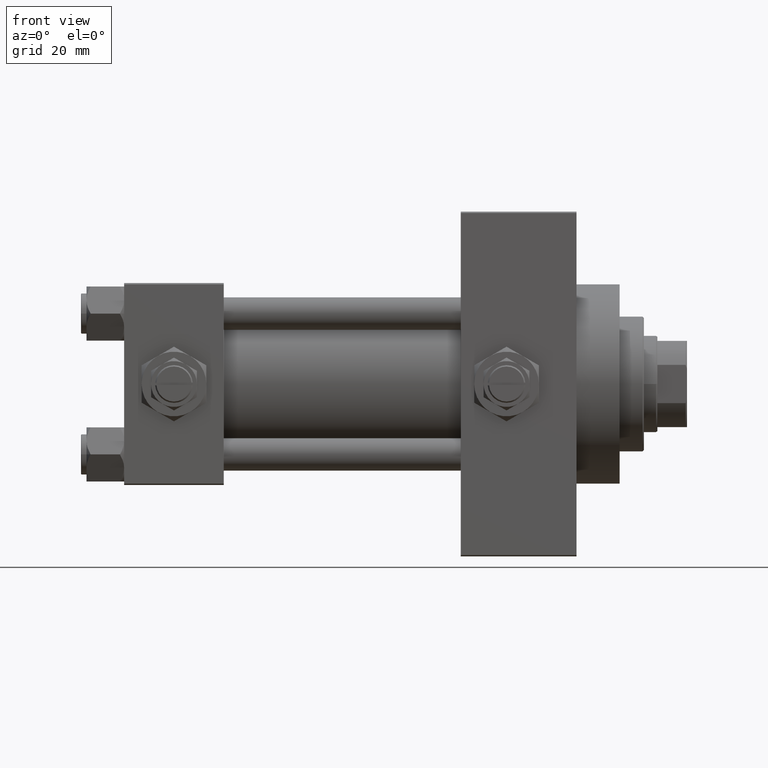
[diagram: clean part render]
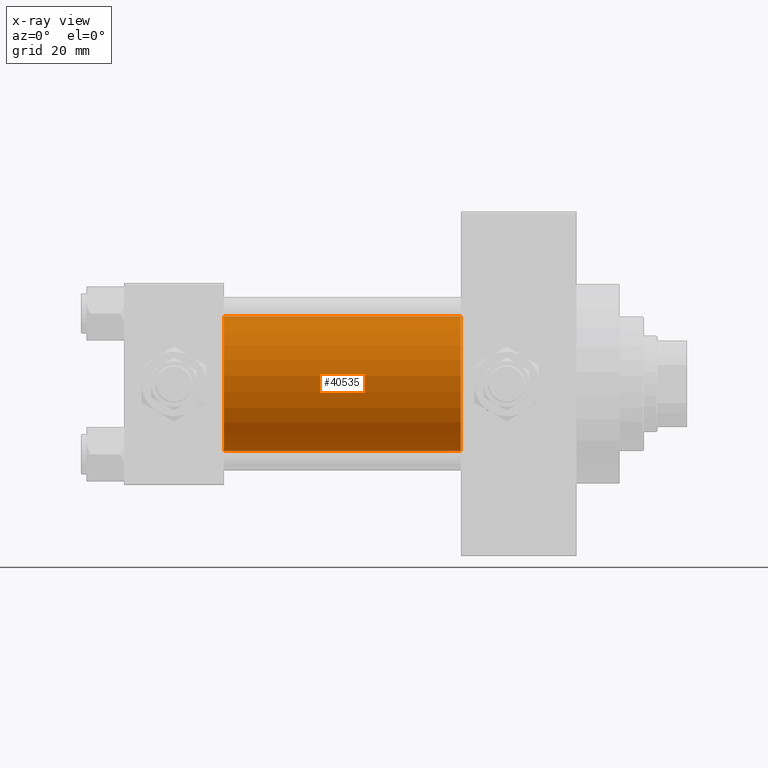
[diagram: x-ray — body ghosted, one internal face saturated and labeled with its STEP entity id]
A machine part, front view, then the same camera in x-ray: the body is ghosted and one INTERNAL B-rep face — a face not visible from any outside direction — is saturated and labeled: STEP entity #40535.
In plain terms, the highlighted cylindrical surface (partial cylindrical patch) has radius 25 mm, axis along (-1, -0, -0).
Its self-contained STEP definition (entity closure, byte-faithful):
#459 = CIRCLE ( 'NONE', #46115, 25.00000000000000000 ) ;
#2094 = FACE_OUTER_BOUND ( 'NONE', #40416, .T. ) ;
#3563 = LINE ( 'NONE', #7070, #39388 ) ;
#4949 = DIRECTION ( 'NONE',  ( 0.000000000000000000, 0.000000000000000000, -1.000000000000000000 ) ) ;
#5374 = ORIENTED_EDGE ( 'NONE', *, *, #21501, .T. ) ;
#7070 = CARTESIAN_POINT ( 'NONE',  ( 125.0000000000000000, 4.595317839031724996E-16, -25.00000000000000000 ) ) ;
#7328 = VERTEX_POINT ( 'NONE', #41788 ) ;
#7675 = CARTESIAN_POINT ( 'NONE',  ( 37.00000000000000000, 4.595317839031724996E-16, -25.00000000000000000 ) ) ;
#7931 = ORIENTED_EDGE ( 'NONE', *, *, #48272, .F. ) ;
#11848 = ORIENTED_EDGE ( 'NONE', *, *, #44888, .T. ) ;
#13600 = CARTESIAN_POINT ( 'NONE',  ( 125.0000000000000000, -2.602085213965210642E-15, 0.000000000000000000 ) ) ;
#13923 = LINE ( 'NONE', #25712, #38445 ) ;
#14933 = ORIENTED_EDGE ( 'NONE', *, *, #17916, .F. ) ;
#16697 = DIRECTION ( 'NONE',  ( 1.000000000000000000, 0.000000000000000000, 0.000000000000000000 ) ) ;
#17400 = CARTESIAN_POINT ( 'NONE',  ( 37.00000000000000000, -2.602085213965210642E-15, 0.000000000000000000 ) ) ;
#17916 = EDGE_CURVE ( 'NONE', #7328, #24968, #13923, .T. ) ;
#18717 = AXIS2_PLACEMENT_3D ( 'NONE', #36013, #16697, #4949 ) ;
#21368 = DIRECTION ( 'NONE',  ( 0.000000000000000000, 0.000000000000000000, 1.000000000000000000 ) ) ;
#21501 = EDGE_CURVE ( 'NONE', #40291, #46181, #3563, .T. ) ;
#24890 = DIRECTION ( 'NONE',  ( -1.000000000000000000, -0.000000000000000000, -0.000000000000000000 ) ) ;
#24968 = VERTEX_POINT ( 'NONE', #35993 ) ;
#25137 = CYLINDRICAL_SURFACE ( 'NONE', #49131, 25.00000000000000000 ) ;
#25712 = CARTESIAN_POINT ( 'NONE',  ( 125.0000000000000000, -2.602085213965210642E-15, 25.00000000000000000 ) ) ;
#26366 = DIRECTION ( 'NONE',  ( -1.000000000000000000, -0.000000000000000000, -0.000000000000000000 ) ) ;
#29230 = DIRECTION ( 'NONE',  ( -1.000000000000000000, -0.000000000000000000, -0.000000000000000000 ) ) ;
#35993 = CARTESIAN_POINT ( 'NONE',  ( 37.00000000000000000, -2.602085213965210642E-15, 25.00000000000000000 ) ) ;
#36013 = CARTESIAN_POINT ( 'NONE',  ( 125.0000000000000000, -2.602085213965210642E-15, 0.000000000000000000 ) ) ;
#36478 = DIRECTION ( 'NONE',  ( 0.000000000000000000, 0.000000000000000000, -1.000000000000000000 ) ) ;
#38445 = VECTOR ( 'NONE', #29230, 1000.000000000000000 ) ;
#39388 = VECTOR ( 'NONE', #26366, 1000.000000000000000 ) ;
#40291 = VERTEX_POINT ( 'NONE', #44594 ) ;
#40337 = CIRCLE ( 'NONE', #18717, 25.00000000000000000 ) ;
#40416 = EDGE_LOOP ( 'NONE', ( #11848, #5374, #7931, #14933 ) ) ;
#40535 = ADVANCED_FACE ( 'NONE', ( #2094 ), #25137, .F. ) ;
#41788 = CARTESIAN_POINT ( 'NONE',  ( 125.0000000000000000, -2.602085213965210642E-15, 25.00000000000000000 ) ) ;
#44594 = CARTESIAN_POINT ( 'NONE',  ( 125.0000000000000000, 4.595317839031724996E-16, -25.00000000000000000 ) ) ;
#44888 = EDGE_CURVE ( 'NONE', #7328, #40291, #40337, .T. ) ;
#46115 = AXIS2_PLACEMENT_3D ( 'NONE', #17400, #48249, #36478 ) ;
#46181 = VERTEX_POINT ( 'NONE', #7675 ) ;
#48249 = DIRECTION ( 'NONE',  ( 1.000000000000000000, 0.000000000000000000, 0.000000000000000000 ) ) ;
#48272 = EDGE_CURVE ( 'NONE', #24968, #46181, #459, .T. ) ;
#49131 = AXIS2_PLACEMENT_3D ( 'NONE', #13600, #24890, #21368 ) ;